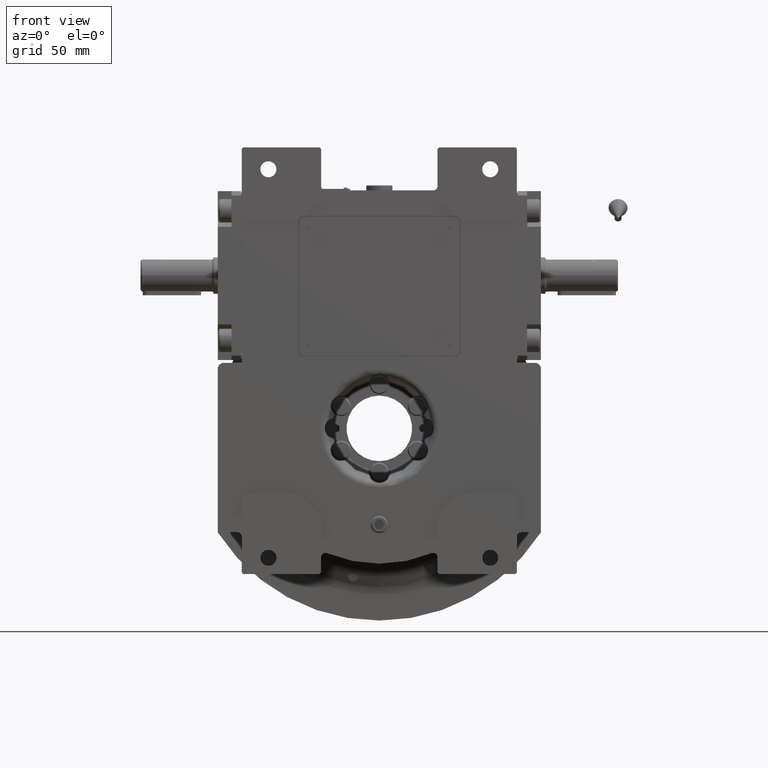
[diagram: clean part render]
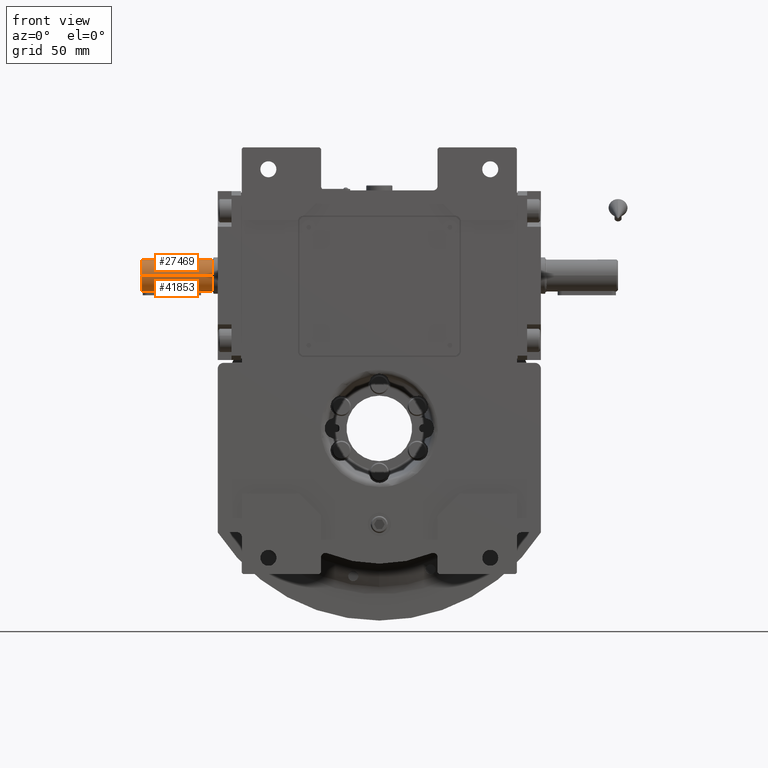
[diagram: same view with one multi-face feature highlighted, each face labeled with its STEP entity id]
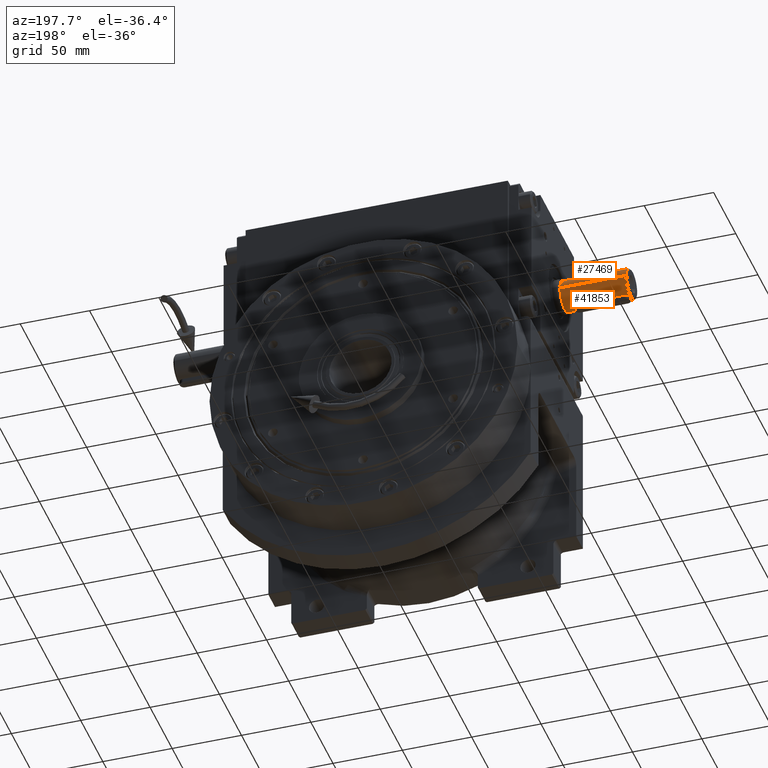
[diagram: same view with one multi-face feature highlighted, each face labeled with its STEP entity id]
A machine part, front view. The highlighted faces form ONE feature: a constant-radius fillet chain: 2 tangent blend faces with common blend radius 11 mm. The faces share edges in the B-rep.
A second angle (auxiliary view) of the same feature is appended — it is thin or edge-on in the first view.
Their STEP definitions:
[1] entity #41853 (Cylinder):
#3 = CARTESIAN_POINT ( 'NONE',  ( 2.768513025352925983, 170.3444174603243084, 10.64570308239752272 ) ) ;
#307 = CARTESIAN_POINT ( 'NONE',  ( -2.698907439505213279, 206.8105446094842534, 10.66393854603710345 ) ) ;
#351 = CARTESIAN_POINT ( 'NONE',  ( -5.539718940497369459, 208.9998216057735476, 9.611494387161672037 ) ) ;
#1695 = CARTESIAN_POINT ( 'NONE',  ( 2.999999999999926281, 171.5000000000000284, 10.58300524425835576 ) ) ;
#1847 = CARTESIAN_POINT ( 'NONE',  ( -2.979326648543515699, 171.0971223052072503, 10.59077587316052238 ) ) ;
#2564 = VECTOR ( 'NONE', #22609, 1000.000000000000000 ) ;
#2754 = CARTESIAN_POINT ( 'NONE',  ( -1.109627185540406735, 208.2872959487409048, 10.94387157015933276 ) ) ;
#2868 = CARTESIAN_POINT ( 'NONE',  ( -1.167542316113182599, 168.7365123355784817, 10.93782163668169360 ) ) ;
#3089 = CARTESIAN_POINT ( 'NONE',  ( -0.3790211413637414317, 208.4824720792036317, 10.99496479331891052 ) ) ;
#3196 = CARTESIAN_POINT ( 'NONE',  ( -1.761503377498397249, 169.0637309891567384, 10.85852761823457158 ) ) ;
#3528 = CARTESIAN_POINT ( 'NONE',  ( 2.009136468733579761, 169.2719375028273703, 10.81489993367487301 ) ) ;
#3763 = CARTESIAN_POINT ( 'NONE',  ( 2.653232687552503410, 206.9137802569441931, 10.67643290049545612 ) ) ;
#4103 = CARTESIAN_POINT ( 'NONE',  ( 2.999999999999926281, 205.5000000000000284, 10.58300524425835576 ) ) ;
#4206 = CARTESIAN_POINT ( 'NONE',  ( 1.765016624717449245, 169.0715607216540377, 10.85718209647383681 ) ) ;
#4426 = CARTESIAN_POINT ( 'NONE',  ( -2.916726216699192076, 206.2985075118487828, 10.60716823416496801 ) ) ;
#5877 = AXIS2_PLACEMENT_3D ( 'NONE', #64886, #32458, #11855 ) ;
#6143 = LINE ( 'NONE', #1695, #2564 ) ;
#6328 = DIRECTION ( 'NONE',  ( -1.000000000000000000, 0.000000000000000000, 7.549516567451066053E-15 ) ) ;
#6617 = CARTESIAN_POINT ( 'NONE',  ( -2.722192573628704704, 170.2328222567296621, 10.65774367792656818 ) ) ;
#6669 = CARTESIAN_POINT ( 'NONE',  ( -3.000000000000073719, 205.5000000000000284, 10.58300524425835576 ) ) ;
#7320 = CARTESIAN_POINT ( 'NONE',  ( -2.438082279217011372, 169.7481291815186353, 10.72743677364182346 ) ) ;
#7368 = AXIS2_PLACEMENT_3D ( 'NONE', #26949, #17296, #6328 ) ;
#7856 = CARTESIAN_POINT ( 'NONE',  ( -3.000000000000073719, 171.5000000000000284, 10.58300524425882827 ) ) ;
#7972 = CARTESIAN_POINT ( 'NONE',  ( -2.232376894938086220, 169.4956412869229325, 10.77130172608870140 ) ) ;
#8008 = LINE ( 'NONE', #61367, #14060 ) ;
#8211 = CARTESIAN_POINT ( 'NONE',  ( 2.999999999999920952, 205.7030581364574857, 10.58473536746739718 ) ) ;
#8328 = CARTESIAN_POINT ( 'NONE',  ( 1.067681326174936718, 168.6962141872421057, 10.94807461813112859 ) ) ;
#8546 = CARTESIAN_POINT ( 'NONE',  ( 2.779840276394454524, 206.6280618357306196, 10.64275983503435086 ) ) ;
#8651 = CARTESIAN_POINT ( 'NONE',  ( 1.678559112312656865, 169.0116241200572915, 10.87070389965108319 ) ) ;
#8872 = CARTESIAN_POINT ( 'NONE',  ( 1.286031883976461732, 208.2106413463210686, 10.92437284050215318 ) ) ;
#8982 = CARTESIAN_POINT ( 'NONE',  ( 2.999999999999926281, 171.5000000000000284, 10.58300524425835576 ) ) ;
#9085 = ORIENTED_EDGE ( 'NONE', *, *, #14012, .T. ) ;
#9218 = CARTESIAN_POINT ( 'NONE',  ( -1.765016607846088048, 207.9284392897766907, 10.85718209991657268 ) ) ;
#9333 = CARTESIAN_POINT ( 'NONE',  ( 1.897425705253070083, 169.1755805140681161, 10.83486051008335416 ) ) ;
#9553 = CARTESIAN_POINT ( 'NONE',  ( -2.715325038922841827, 206.7760518172297566, 10.65964338194845240 ) ) ;
#10602 = CARTESIAN_POINT ( 'NONE',  ( -2.167336588683644205, 169.4254685392180306, 10.78446056407007347 ) ) ;
#11266 = CARTESIAN_POINT ( 'NONE',  ( -9.611494388950392320, 208.9998216057721550, 5.539718937396585829 ) ) ;
#11467 = CYLINDRICAL_SURFACE ( 'NONE', #7368, 11.00000000000000000 ) ;
#11628 = B_SPLINE_CURVE_WITH_KNOTS ( 'NONE', 3,
 ( #4103, #8211, #34248, #14031, #13695, #24330, #45840, #12994, #24003, #8546, #18494, #60547, #49621, #3763, #55746, #50290, #45513, #40038, #39363, #18827, #60211, #13331, #55072, #34602, #39686, #18167, #54734, #8872, #39036, #44502, #65673, #29823, #50623, #29165, #66356, #40371, #55420, #3089, #14358, #59874, #29485, #49967, #45162, #2754, #23678, #65343, #66007, #60890, #35260, #56089, #9218, #20205, #46172, #14706, #36270, #41059, #51294, #35612, #57089, #21204, #30492, #307, #9553, #36616, #35941, #57436, #46525, #20541, #67024, #4426, #56436, #47178 ),
 .UNSPECIFIED., .F., .F.,
 ( 4, 2, 2, 1, 1, 1, 2, 2, 2, 2, 2, 2, 2, 2, 2, 2, 1, 1, 2, 2, 2, 2, 2, 1, 1, 1, 2, 2, 2, 2, 2, 2, 2, 2, 2, 2, 1, 1, 2, 2, 4 ),
 ( 0.000000000000000000, 0.06249999999979319321, 0.09374999999968548769, 0.1093749999996316419, 0.1171874999996089517, 0.1210937499995975442, 0.1230468749995918820, 0.1249999999995862060, 0.1874999999995273503, 0.2187499999995015654, 0.2343749999994916011, 0.2421874999994891586, 0.2499999999994867439, 0.3124999999994863553, 0.3437499999994862443, 0.3593749999994861333, 0.3671874999994884647, 0.3710937499994895195, 0.3730468749994876321, 0.3749999999994858002, 0.4999999999993999245, 0.5624999999993569588, 0.5937499999993364197, 0.6093749999993260946, 0.6171874999993223199, 0.6210937499993219868, 0.6230468749993218758, 0.6249999999993216537, 0.6874999999994270139, 0.7187499999994796385, 0.7343749999995060618, 0.7421874999995192734, 0.7499999999995324851, 0.8124999999996329603, 0.8437499999996794786, 0.8593749999997026823, 0.8671874999997142286, 0.8710937499997200018, 0.8730468749997227773, 0.8749999999997254418, 1.000000000000000000 ),
 .UNSPECIFIED. ) ;
#11757 = CARTESIAN_POINT ( 'NONE',  ( -3.000000000000073719, 171.5000000000000284, 10.58300524425882827 ) ) ;
#11855 = DIRECTION ( 'NONE',  ( -1.000000000000000000, 0.000000000000000000, 7.711003552851090256E-15 ) ) ;
#12313 = CARTESIAN_POINT ( 'NONE',  ( -11.00000000000000000, 161.0000000000000284, -4.628547545237893246E-09 ) ) ;
#12994 = CARTESIAN_POINT ( 'NONE',  ( 2.801868858470870194, 206.5726274570406247, 10.63704590494140412 ) ) ;
#13104 = CARTESIAN_POINT ( 'NONE',  ( -2.498350456136470221, 169.8363144599198051, 10.71355034653169014 ) ) ;
#13331 = CARTESIAN_POINT ( 'NONE',  ( 2.143602779759605337, 207.5990400649874061, 10.78918130667785213 ) ) ;
#13448 = CARTESIAN_POINT ( 'NONE',  ( 2.644564864764742840, 170.0812713992473277, 10.67795870609824327 ) ) ;
#13660 = EDGE_CURVE ( 'NONE', #39619, #40430, #39033, .T. ) ;
#13695 = CARTESIAN_POINT ( 'NONE',  ( 2.896620549922614529, 206.2867366109769875, 10.61255509526254848 ) ) ;
#13808 = CARTESIAN_POINT ( 'NONE',  ( 2.031554838444890265, 169.2923470949750140, 10.81075490227133251 ) ) ;
#14012 = EDGE_CURVE ( 'NONE', #53607, #32278, #47525, .T. ) ;
#14031 = CARTESIAN_POINT ( 'NONE',  ( 2.920736592802828380, 206.1920781631040427, 10.60630209123707246 ) ) ;
#14060 = VECTOR ( 'NONE', #24836, 1000.000000000000000 ) ;
#14134 = CARTESIAN_POINT ( 'NONE',  ( 2.767734022707143193, 170.3425611766373891, 10.64590627712759385 ) ) ;
#14358 = CARTESIAN_POINT ( 'NONE',  ( -0.6690471670458788545, 208.4261023684203451, 10.97984746646838872 ) ) ;
#14469 = CARTESIAN_POINT ( 'NONE',  ( 1.279005678273045454, 168.7827925354090155, 10.92607962578965264 ) ) ;
#14706 = CARTESIAN_POINT ( 'NONE',  ( -2.009136411221243090, 207.7280625489485146, 10.81489994510766550 ) ) ;
#15036 = VERTEX_POINT ( 'NONE', #12313 ) ;
#15083 = CARTESIAN_POINT ( 'NONE',  ( 5.539718934293243358, 208.9998216057761340, 9.611494390734476312 ) ) ;
#15758 = CARTESIAN_POINT ( 'NONE',  ( -1.439873283641012858, 208.9998216057745140, 10.99982159951607841 ) ) ;
#16109 = CARTESIAN_POINT ( 'NONE',  ( 2.879180028076219422, 208.9998216057754803, 10.71352568765430746 ) ) ;
#16493 = ORIENTED_EDGE ( 'NONE', *, *, #37286, .F. ) ;
#17296 = DIRECTION ( 'NONE',  ( 4.190823558986625216E-31, -1.000000000000000000, -8.381647117973250432E-31 ) ) ;
#17718 = B_SPLINE_CURVE_WITH_KNOTS ( 'NONE', 3,
 ( #11757, #23094, #1847, #22759, #32671, #17926, #37811, #27553, #43594, #59986, #38463, #38810, #6617, #59661, #13104, #7320, #28248, #34026, #7972, #28919, #10602, #31514, #44611, #3196, #25125, #50070, #24443, #61333, #24801, #40145, #66461, #2868, #29273, #50401, #19620, #40475, #18938, #35373, #56206, #45274, #55525, #23787, #8328, #44939, #34365, #45619, #24113, #14469, #39800, #8651, #4206, #9333, #60671, #3528, #13808, #65778, #39467, #29933, #34708, #29596, #13448, #66133, #19295, #46871, #60993, #30278, #60319, #14134, #3, #35033, #55856, #8982 ),
 .UNSPECIFIED., .F., .F.,
 ( 4, 2, 2, 1, 1, 1, 2, 2, 2, 2, 2, 2, 2, 2, 2, 2, 1, 1, 2, 2, 2, 2, 2, 1, 1, 1, 2, 2, 2, 2, 2, 2, 2, 2, 2, 2, 1, 1, 2, 2, 4 ),
 ( 0.000000000000000000, 0.06249999999987385091, 0.09374999999981076249, 0.1093749999997834788, 0.1171874999997698091, 0.1210937499997629813, 0.1230468749997596228, 0.1249999999997562505, 0.1874999999998356592, 0.2187499999998752942, 0.2343749999998922529, 0.2421874999998981370, 0.2499999999999040212, 0.3124999999999651945, 0.3437499999999957812, 0.3593750000000087153, 0.3671875000000128231, 0.3710937500000148770, 0.3730468750000183187, 0.3750000000000217604, 0.5000000000001676437, 0.5625000000002406964, 0.5937500000002772227, 0.6093750000002954303, 0.6171875000003045342, 0.6210937500003090861, 0.6230468750003097522, 0.6250000000003104184, 0.6875000000003234080, 0.7187500000003322898, 0.7343750000003390621, 0.7421875000003448353, 0.7500000000003506084, 0.8125000000004060086, 0.8437500000004299894, 0.8593750000004372058, 0.8671875000004463097, 0.8710937500004508616, 0.8730468750004469758, 0.8750000000004430900, 1.000000000000000000 ),
 .UNSPECIFIED. ) ;
#17926 = CARTESIAN_POINT ( 'NONE',  ( -2.854075951817782286, 170.5744775876573556, 10.62355100343989101 ) ) ;
#17973 = FACE_OUTER_BOUND ( 'NONE', #45938, .T. ) ;
#18167 = CARTESIAN_POINT ( 'NONE',  ( 1.433641063859913301, 208.1365963449600542, 10.90581971387782190 ) ) ;
#18494 = CARTESIAN_POINT ( 'NONE',  ( 2.775339633358492986, 206.6390897185938229, 10.64392871889903880 ) ) ;
#18827 = CARTESIAN_POINT ( 'NONE',  ( 2.211193640733474020, 207.5277207285452619, 10.77562492030889985 ) ) ;
#18938 = CARTESIAN_POINT ( 'NONE',  ( 0.1869661390004682955, 168.4999999914901139, 11.00000259683182691 ) ) ;
#19006 = ORIENTED_EDGE ( 'NONE', *, *, #33227, .F. ) ;
#19295 = CARTESIAN_POINT ( 'NONE',  ( 2.715325017861220935, 170.2239481373033527, 10.65964339383729786 ) ) ;
#19620 = CARTESIAN_POINT ( 'NONE',  ( -0.7694194016925647306, 168.5709750817599684, 10.97983836647868294 ) ) ;
#19899 = ORIENTED_EDGE ( 'NONE', *, *, #13660, .T. ) ;
#20205 = CARTESIAN_POINT ( 'NONE',  ( -1.897425668484651551, 207.8244195157290619, 10.83486051743896361 ) ) ;
#20541 = CARTESIAN_POINT ( 'NONE',  ( -2.767734004599104125, 206.6574388666507502, 10.64590627739815432 ) ) ;
#21204 = CARTESIAN_POINT ( 'NONE',  ( -2.601559668085960286, 206.9971612710416196, 10.68881831214253708 ) ) ;
#22609 = DIRECTION ( 'NONE',  ( -4.190823558986625216E-31, 1.000000000000000000, 8.381647117973250432E-31 ) ) ;
#22759 = CARTESIAN_POINT ( 'NONE',  ( -2.920736532385515005, 170.8079215815316161, 10.60630211995170846 ) ) ;
#23094 = CARTESIAN_POINT ( 'NONE',  ( -3.000000000000080380, 171.2969416959749935, 10.58473538646192047 ) ) ;
#23678 = CARTESIAN_POINT ( 'NONE',  ( -1.127575243858438991, 208.2800388084310441, 10.94202596088717527 ) ) ;
#23787 = CARTESIAN_POINT ( 'NONE',  ( 0.9835474860896797900, 168.6650015443500479, 10.95606725368446455 ) ) ;
#24003 = CARTESIAN_POINT ( 'NONE',  ( 2.786545493596085610, 206.6114913094266967, 10.64101913722736192 ) ) ;
#24113 = CARTESIAN_POINT ( 'NONE',  ( 1.147497296970661607, 168.7281290473081299, 10.93995103367353039 ) ) ;
#24330 = CARTESIAN_POINT ( 'NONE',  ( 2.854076010124392937, 206.4255222335273459, 10.62355098402704634 ) ) ;
#24443 = CARTESIAN_POINT ( 'NONE',  ( -1.322026423828879471, 168.8066771672218067, 10.91998920481134405 ) ) ;
#24801 = CARTESIAN_POINT ( 'NONE',  ( -1.234039142372917341, 168.7654962015103592, 10.93043900252522072 ) ) ;
#24836 = DIRECTION ( 'NONE',  ( -4.190823558986625216E-31, 1.000000000000000000, 8.381647117973250432E-31 ) ) ;
#25125 = CARTESIAN_POINT ( 'NONE',  ( -1.512920505492289402, 168.9075789781375363, 10.89501527342681975 ) ) ;
#25395 = CARTESIAN_POINT ( 'NONE',  ( -8.796192606682934567, 208.9998216057725244, 6.759904283368526556 ) ) ;
#26949 = CARTESIAN_POINT ( 'NONE',  ( -1.806714880829665954E-27, 160.0000000000000284, 4.718447854656915297E-13 ) ) ;
#27087 = CARTESIAN_POINT ( 'NONE',  ( 8.796192602316750708, 208.9998216057771572, 6.759904289042378167 ) ) ;
#27553 = CARTESIAN_POINT ( 'NONE',  ( -2.801868823610907278, 170.4273724525710065, 10.63704591330718685 ) ) ;
#27713 = ORIENTED_EDGE ( 'NONE', *, *, #31476, .F. ) ;
#27826 = CARTESIAN_POINT ( 'NONE',  ( -10.99995538991750088, 208.9999554115215119, -1.645558550533721132E-07 ) ) ;
#28248 = CARTESIAN_POINT ( 'NONE',  ( -2.331831480777063703, 169.6116446080049229, 10.75053732546463259 ) ) ;
#28460 = DIRECTION ( 'NONE',  ( -4.190823558986625216E-31, 1.000000000000000000, 8.381647117973250432E-31 ) ) ;
#28919 = CARTESIAN_POINT ( 'NONE',  ( -2.211193619821321565, 169.4722792484953686, 10.77562492455033727 ) ) ;
#29165 = CARTESIAN_POINT ( 'NONE',  ( 1.157452513228705016, 208.2677329124778964, 10.93890087851657711 ) ) ;
#29273 = CARTESIAN_POINT ( 'NONE',  ( -1.159479155630789737, 168.7331195871554428, 10.93868412015501868 ) ) ;
#29485 = CARTESIAN_POINT ( 'NONE',  ( -0.9111084508035232066, 208.3587463839891711, 10.96220928438663655 ) ) ;
#29596 = CARTESIAN_POINT ( 'NONE',  ( 2.601559605864343538, 170.0028386211674274, 10.68881833244912549 ) ) ;
#29823 = CARTESIAN_POINT ( 'NONE',  ( 1.167542354304431651, 208.2634876482844959, 10.93782163464049439 ) ) ;
#29933 = CARTESIAN_POINT ( 'NONE',  ( 2.308734591574675310, 169.5660757615260650, 10.75673222596681278 ) ) ;
#30278 = CARTESIAN_POINT ( 'NONE',  ( 2.759870980702121113, 170.3238923559703721, 10.64795842688990746 ) ) ;
#30492 = CARTESIAN_POINT ( 'NONE',  ( -2.644564917222758105, 206.9187285013183555, 10.67795868685712435 ) ) ;
#31464 = ORIENTED_EDGE ( 'NONE', *, *, #37332, .F. ) ;
#31476 = EDGE_CURVE ( 'NONE', #15036, #36917, #8008, .T. ) ;
#31514 = CARTESIAN_POINT ( 'NONE',  ( -2.143602725503916062, 169.4009598796852458, 10.78918131756622500 ) ) ;
#31529 = CARTESIAN_POINT ( 'NONE',  ( -6.759904286206499968, 208.9998216057732066, 8.796192604501118950 ) ) ;
#31818 = CARTESIAN_POINT ( 'NONE',  ( 11.00000000000000000, 161.0000000000000284, 0.000000000000000000 ) ) ;
#32278 = VERTEX_POINT ( 'NONE', #42960 ) ;
#32389 = FACE_BOUND ( 'NONE', #63577, .T. ) ;
#32458 = DIRECTION ( 'NONE',  ( -4.190823558986625216E-31, 1.000000000000000000, 8.381647117973250432E-31 ) ) ;
#32671 = CARTESIAN_POINT ( 'NONE',  ( -2.896620484574007559, 170.7132631530699030, 10.61255512167265103 ) ) ;
#32873 = CARTESIAN_POINT ( 'NONE',  ( -3.000000000000073719, 171.5000000000000284, 10.58300524425882827 ) ) ;
#33227 = EDGE_CURVE ( 'NONE', #50783, #40430, #11628, .T. ) ;
#34026 = CARTESIAN_POINT ( 'NONE',  ( -2.293773039446043605, 169.5654594730333997, 10.75861599459850027 ) ) ;
#34248 = CARTESIAN_POINT ( 'NONE',  ( 2.979326682313694352, 205.9028774423900074, 10.59077584461320853 ) ) ;
#34365 = CARTESIAN_POINT ( 'NONE',  ( 1.127575323570569443, 168.7199612239032547, 10.94202595588551397 ) ) ;
#34602 = CARTESIAN_POINT ( 'NONE',  ( 1.761503382575570598, 207.9362690075281250, 10.85852761685147527 ) ) ;
#34708 = CARTESIAN_POINT ( 'NONE',  ( 2.446669717013518319, 169.7529380078596262, 10.72593579875619696 ) ) ;
#35033 = CARTESIAN_POINT ( 'NONE',  ( 2.916726425407026202, 170.7014930090882672, 10.60716817197001127 ) ) ;
#35260 = CARTESIAN_POINT ( 'NONE',  ( -1.429970973129989442, 208.1445195910418136, 10.90719154465723761 ) ) ;
#35261 = EDGE_CURVE ( 'NONE', #39619, #63071, #17718, .T. ) ;
#35373 = CARTESIAN_POINT ( 'NONE',  ( 0.3790212450437298597, 168.5175279328498164, 10.99496478591223259 ) ) ;
#35612 = CARTESIAN_POINT ( 'NONE',  ( -2.308734620827886275, 207.4339242235998597, 10.75673222121823080 ) ) ;
#35941 = CARTESIAN_POINT ( 'NONE',  ( -2.748365588727722741, 206.7029063017605779, 10.65097208023377284 ) ) ;
#35982 = CARTESIAN_POINT ( 'NONE',  ( 6.759904280527829101, 208.9998216057764466, 8.796192608861028717 ) ) ;
#36270 = CARTESIAN_POINT ( 'NONE',  ( -2.031554776398934337, 207.7076529620197221, 10.81075491461140992 ) ) ;
#36616 = CARTESIAN_POINT ( 'NONE',  ( -2.737723622719320904, 206.7268634571211408, 10.65376796009249638 ) ) ;
#36917 = VERTEX_POINT ( 'NONE', #27826 ) ;
#37286 = EDGE_CURVE ( 'NONE', #36917, #32278, #62407, .T. ) ;
#37332 = EDGE_CURVE ( 'NONE', #63071, #50783, #6143, .T. ) ;
#37811 = CARTESIAN_POINT ( 'NONE',  ( -2.831211770130450223, 170.5058840566492506, 10.62945303911996753 ) ) ;
#38463 = CARTESIAN_POINT ( 'NONE',  ( -2.775339617218290922, 170.3609102421057173, 10.64392872073281993 ) ) ;
#38810 = CARTESIAN_POINT ( 'NONE',  ( -2.772312094891824508, 170.3535701749893008, 10.64471543622038219 ) ) ;
#39033 = LINE ( 'NONE', #7856, #55253 ) ;
#39036 = CARTESIAN_POINT ( 'NONE',  ( 1.234039166872521687, 208.2345037874122511, 10.93043900165574023 ) ) ;
#39298 = ORIENTED_EDGE ( 'NONE', *, *, #35261, .F. ) ;
#39363 = CARTESIAN_POINT ( 'NONE',  ( 2.232376909501758266, 207.5043586967249496, 10.77130172318535983 ) ) ;
#39467 = CARTESIAN_POINT ( 'NONE',  ( 2.097778072076528222, 169.3551396584122983, 10.79818608746039565 ) ) ;
#39568 = CARTESIAN_POINT ( 'NONE',  ( 10.99982159904755719, 208.9998216057784646, 1.439873287189853635 ) ) ;
#39619 = VERTEX_POINT ( 'NONE', #32873 ) ;
#39686 = CARTESIAN_POINT ( 'NONE',  ( 1.512920505027652407, 208.0924210222171951, 10.89501527399900027 ) ) ;
#39800 = CARTESIAN_POINT ( 'NONE',  ( 1.429970974490046398, 168.8554804092703421, 10.90719154593360152 ) ) ;
#40038 = CARTESIAN_POINT ( 'NONE',  ( 2.293773036830393686, 207.4345405295221951, 10.75861599544649572 ) ) ;
#40145 = CARTESIAN_POINT ( 'NONE',  ( -1.208542002004602267, 168.7540940151675102, 10.93334476044181791 ) ) ;
#40371 = CARTESIAN_POINT ( 'NONE',  ( 0.3739325104841490499, 208.4999999856364070, 10.99999479697607541 ) ) ;
#40430 = VERTEX_POINT ( 'NONE', #6669 ) ;
#40475 = CARTESIAN_POINT ( 'NONE',  ( -0.3739326876441928516, 168.5000000170199428, 10.99999480633900717 ) ) ;
#41059 = CARTESIAN_POINT ( 'NONE',  ( -2.076399965673086712, 207.6655275553030151, 10.80229494691891112 ) ) ;
#41184 = CARTESIAN_POINT ( 'NONE',  ( 2.999999999999926281, 171.5000000000000284, 10.58300524425835576 ) ) ;
#41853 = ADVANCED_FACE ( 'NONE', ( #17973, #32389 ), #11467, .T. ) ;
#42431 = CARTESIAN_POINT ( 'NONE',  ( -10.71352568672911154, 208.9998216057715865, 2.879180031534207984 ) ) ;
#42960 = CARTESIAN_POINT ( 'NONE',  ( 11.00000000000000000, 208.9999777057610117, 0.000000000000000000 ) ) ;
#43594 = CARTESIAN_POINT ( 'NONE',  ( -2.786545469109216633, 170.3885086293562949, 10.64101914187423681 ) ) ;
#44502 = CARTESIAN_POINT ( 'NONE',  ( 1.208542031159796082, 208.2459059719581091, 10.93334475918530480 ) ) ;
#44611 = CARTESIAN_POINT ( 'NONE',  ( -1.942138540634602784, 169.1995151677060107, 10.82877006683071386 ) ) ;
#44939 = CARTESIAN_POINT ( 'NONE',  ( 1.109627269032139152, 168.7127040845179238, 10.94387156488032531 ) ) ;
#45162 = CARTESIAN_POINT ( 'NONE',  ( -1.067681234393989431, 208.3037858477821942, 10.94807462401718645 ) ) ;
#45274 = CARTESIAN_POINT ( 'NONE',  ( 0.7660300046609707092, 168.5976912605676716, 10.97354824663432815 ) ) ;
#45513 = CARTESIAN_POINT ( 'NONE',  ( 2.331831469196719020, 207.3883554059316339, 10.75053732846294174 ) ) ;
#45619 = CARTESIAN_POINT ( 'NONE',  ( 1.139533978096353595, 168.7248416225932601, 10.94078570534258787 ) ) ;
#45840 = CARTESIAN_POINT ( 'NONE',  ( 2.831211821317812127, 206.4941158000846713, 10.62945302409086779 ) ) ;
#45938 = EDGE_LOOP ( 'NONE', ( #50993, #9085, #16493, #27713 ) ) ;
#46172 = CARTESIAN_POINT ( 'NONE',  ( -1.942007582189039017, 207.7873945690254232, 10.82708017654643484 ) ) ;
#46525 = CARTESIAN_POINT ( 'NONE',  ( -2.764613468312776767, 206.6648727917981319, 10.64672004479335143 ) ) ;
#46871 = CARTESIAN_POINT ( 'NONE',  ( 2.737723616411819716, 170.2731365286352059, 10.65376796770135215 ) ) ;
#47178 = CARTESIAN_POINT ( 'NONE',  ( -3.000000000000073719, 205.5000000000000284, 10.58300524425835576 ) ) ;
#47525 = LINE ( 'NONE', #31818, #62917 ) ;
#47570 = CARTESIAN_POINT ( 'NONE',  ( -10.99995538991750088, 208.9999554115215119, -1.645558550533721132E-07 ) ) ;
#49621 = CARTESIAN_POINT ( 'NONE',  ( 2.722192558527224637, 206.7671777832652253, 10.65774368688581752 ) ) ;
#49967 = CARTESIAN_POINT ( 'NONE',  ( -0.9835473798974589954, 208.3349984927263279, 10.95606726062416847 ) ) ;
#50070 = CARTESIAN_POINT ( 'NONE',  ( -1.433641062218309337, 168.8634036539154408, 10.90581971317198651 ) ) ;
#50290 = CARTESIAN_POINT ( 'NONE',  ( 2.438082247072540287, 207.2518708616502465, 10.72743678203931772 ) ) ;
#50401 = CARTESIAN_POINT ( 'NONE',  ( -1.157452472523895493, 168.7322670704961354, 10.93890088078124201 ) ) ;
#50623 = CARTESIAN_POINT ( 'NONE',  ( 1.159479195744522739, 208.2668803960329171, 10.93868411794433371 ) ) ;
#50783 = VERTEX_POINT ( 'NONE', #58938 ) ;
#50993 = ORIENTED_EDGE ( 'NONE', *, *, #64128, .T. ) ;
#51294 = CARTESIAN_POINT ( 'NONE',  ( -2.097777976926294752, 207.6448604349320135, 10.79818610642119481 ) ) ;
#52327 = CARTESIAN_POINT ( 'NONE',  ( 1.439873276542152247, 208.9998216057751108, 10.99982160044466362 ) ) ;
#53607 = VERTEX_POINT ( 'NONE', #53742 ) ;
#53742 = CARTESIAN_POINT ( 'NONE',  ( 11.00000000000000000, 161.0000000000000284, 4.629005512235551123E-09 ) ) ;
#54017 = CARTESIAN_POINT ( 'NONE',  ( 10.71352568486465096, 208.9998216057781235, 2.879180038446522261 ) ) ;
#54734 = CARTESIAN_POINT ( 'NONE',  ( 1.322026435441519654, 208.1933228270213192, 10.91998920494051184 ) ) ;
#55072 = CARTESIAN_POINT ( 'NONE',  ( 1.942138565853941845, 207.8004848156914761, 10.82877006207170112 ) ) ;
#55253 = VECTOR ( 'NONE', #28460, 1000.000000000000000 ) ;
#55302 = CARTESIAN_POINT ( 'NONE',  ( 9.611494385370731308, 208.9998216057774698, 5.539718943596763978 ) ) ;
#55420 = CARTESIAN_POINT ( 'NONE',  ( -0.1869660823866986232, 208.5000000071818249, 11.00000260151293929 ) ) ;
#55525 = CARTESIAN_POINT ( 'NONE',  ( 0.9111085654770401110, 168.6412536526179053, 10.96220927681882351 ) ) ;
#55746 = CARTESIAN_POINT ( 'NONE',  ( 2.498350418695179265, 207.1636855961121739, 10.71355035712630688 ) ) ;
#55856 = CARTESIAN_POINT ( 'NONE',  ( 2.999999999999919176, 171.0937962497110334, 10.58646650751571272 ) ) ;
#56089 = CARTESIAN_POINT ( 'NONE',  ( -1.678559104051018824, 207.9883758854034284, 10.87070390130170239 ) ) ;
#56206 = CARTESIAN_POINT ( 'NONE',  ( 0.6690472934797423443, 168.5738976602024479, 10.97984745790703087 ) ) ;
#56436 = CARTESIAN_POINT ( 'NONE',  ( -3.000000000000078604, 205.9062042931898304, 10.58646656928889129 ) ) ;
#57089 = CARTESIAN_POINT ( 'NONE',  ( -2.446669781241361807, 207.2470619033198318, 10.72593578221498234 ) ) ;
#57436 = CARTESIAN_POINT ( 'NONE',  ( -2.759870969661187168, 206.6761076698489319, 10.64795842476979715 ) ) ;
#58938 = CARTESIAN_POINT ( 'NONE',  ( 2.999999999999926281, 205.5000000000000284, 10.58300524425835576 ) ) ;
#59661 = CARTESIAN_POINT ( 'NONE',  ( -2.653232724297382106, 170.0862198111042574, 10.67643288751645692 ) ) ;
#59874 = CARTESIAN_POINT ( 'NONE',  ( -0.7660298785186825388, 208.4023087729604526, 10.97354825509163589 ) ) ;
#59986 = CARTESIAN_POINT ( 'NONE',  ( -2.779840256848175262, 170.3719381161269268, 10.64275983800443548 ) ) ;
#60211 = CARTESIAN_POINT ( 'NONE',  ( 2.167336623629462888, 207.5745314241212895, 10.78446055697714989 ) ) ;
#60319 = CARTESIAN_POINT ( 'NONE',  ( 2.764613483579594355, 170.3351272444222104, 10.64672004548993733 ) ) ;
#60547 = CARTESIAN_POINT ( 'NONE',  ( 2.772312108320804658, 206.6464297925444100, 10.64471543524964936 ) ) ;
#60671 = CARTESIAN_POINT ( 'NONE',  ( 1.942007626740608561, 169.2126054684655969, 10.82708016768242310 ) ) ;
#60890 = CARTESIAN_POINT ( 'NONE',  ( -1.279005655815794507, 208.2172074779477953, 10.92607962582780168 ) ) ;
#60993 = CARTESIAN_POINT ( 'NONE',  ( 2.748365590168971639, 170.2970937011939725, 10.65097208548508156 ) ) ;
#61333 = CARTESIAN_POINT ( 'NONE',  ( -1.286031867911195947, 168.7893586459718449, 10.92437284069473513 ) ) ;
#61367 = CARTESIAN_POINT ( 'NONE',  ( -11.00000000000000000, 161.0000000000000284, 4.718447854656915297E-13 ) ) ;
#61952 = CARTESIAN_POINT ( 'NONE',  ( -2.879180034990576953, 208.9998216057742297, 10.71352568579750297 ) ) ;
#62407 = B_SPLINE_CURVE_WITH_KNOTS ( 'NONE', 3,
 ( #47570, #62601, #42431, #11266, #25395, #31529, #351, #61952, #15758, #52327, #16109, #15083, #35982, #27087, #55302, #54017, #39568, #65557 ),
 .UNSPECIFIED., .F., .F.,
 ( 4, 2, 2, 2, 2, 2, 2, 2, 4 ),
 ( 0.000000000000000000, 0.1250000000000000000, 0.2500000000000000000, 0.3750000000000000000, 0.5000000000000000000, 0.6250000000000000000, 0.7500000000000000000, 0.8750000000000000000, 1.000000000000000000 ),
 .UNSPECIFIED. ) ;
#62556 = DIRECTION ( 'NONE',  ( -4.190823558986625216E-31, 1.000000000000000000, 8.381647117973250432E-31 ) ) ;
#62601 = CARTESIAN_POINT ( 'NONE',  ( -10.99982159998399567, 208.9998216057711602, 1.439873280092003771 ) ) ;
#62917 = VECTOR ( 'NONE', #62556, 1000.000000000000000 ) ;
#63071 = VERTEX_POINT ( 'NONE', #41184 ) ;
#63577 = EDGE_LOOP ( 'NONE', ( #19899, #19006, #31464, #39298 ) ) ;
#64128 = EDGE_CURVE ( 'NONE', #15036, #53607, #65030, .T. ) ;
#64886 = CARTESIAN_POINT ( 'NONE',  ( -8.881784197018295663E-16, 161.0000000000000284, 4.579669976578770729E-13 ) ) ;
#65030 = CIRCLE ( 'NONE', #5877, 11.00000000000000000 ) ;
#65343 = CARTESIAN_POINT ( 'NONE',  ( -1.139533900953834111, 208.2751584090861456, 10.94078571015552725 ) ) ;
#65557 = CARTESIAN_POINT ( 'NONE',  ( 11.00000000000000000, 208.9999777057610117, 0.000000000000000000 ) ) ;
#65673 = CARTESIAN_POINT ( 'NONE',  ( 1.179703648391469128, 208.2583393865936614, 10.93651199430383691 ) ) ;
#65778 = CARTESIAN_POINT ( 'NONE',  ( 2.076400037127481557, 169.3344725131065616, 10.80229493266220686 ) ) ;
#66007 = CARTESIAN_POINT ( 'NONE',  ( -1.147497220845979271, 208.2718709842086469, 10.93995103843515260 ) ) ;
#66133 = CARTESIAN_POINT ( 'NONE',  ( 2.698907409592853579, 170.1894553284683695, 10.66393856019913677 ) ) ;
#66356 = CARTESIAN_POINT ( 'NONE',  ( 0.7694195325722928969, 208.4290248706462023, 10.97983835631162108 ) ) ;
#66461 = CARTESIAN_POINT ( 'NONE',  ( -1.179703613028072251, 168.7416605982708973, 10.93651199609687730 ) ) ;
#67024 = CARTESIAN_POINT ( 'NONE',  ( -2.768513007301309781, 206.6555825828829143, 10.64570308271039600 ) ) ;
[2] entity #27469 (Cylinder):
#652 = CARTESIAN_POINT ( 'NONE',  ( 8.348436726547641190E-14, 208.9999108029441004, -10.99991079990971343 ) ) ;
#2746 = ORIENTED_EDGE ( 'NONE', *, *, #14012, .F. ) ;
#2908 = EDGE_CURVE ( 'NONE', #53607, #15036, #28703, .T. ) ;
#3608 = ORIENTED_EDGE ( 'NONE', *, *, #37258, .F. ) ;
#5123 = EDGE_LOOP ( 'NONE', ( #8203, #2746, #43178, #20975, #3608 ) ) ;
#5213 = B_SPLINE_CURVE_WITH_KNOTS ( 'NONE', 3,
 ( #10266, #16427, #36311, #36663, #30856, #15417, #5466, #31205, #62952, #52019 ),
 .UNSPECIFIED., .F., .F.,
 ( 4, 2, 2, 2, 4 ),
 ( 0.5000000041388067418, 0.6250000031041050841, 0.7500000020694035374, 0.8750000010347016577, 1.000000000000000000 ),
 .UNSPECIFIED. ) ;
#5466 = CARTESIAN_POINT ( 'NONE',  ( -9.611494287303022688, 208.9998216060406548, -5.539719106973692853 ) ) ;
#8008 = LINE ( 'NONE', #61367, #14060 ) ;
#8203 = ORIENTED_EDGE ( 'NONE', *, *, #40097, .F. ) ;
#10266 = CARTESIAN_POINT ( 'NONE',  ( 8.348436726547641190E-14, 208.9999108029441004, -10.99991079990971343 ) ) ;
#12173 = VERTEX_POINT ( 'NONE', #53914 ) ;
#12208 = CARTESIAN_POINT ( 'NONE',  ( 8.796192603699495294, 208.9998216058430103, -6.759904287097469044 ) ) ;
#12313 = CARTESIAN_POINT ( 'NONE',  ( -11.00000000000000000, 161.0000000000000284, -4.628547545237893246E-09 ) ) ;
#14012 = EDGE_CURVE ( 'NONE', #53607, #32278, #47525, .T. ) ;
#14060 = VECTOR ( 'NONE', #24836, 1000.000000000000000 ) ;
#14820 = CYLINDRICAL_SURFACE ( 'NONE', #54242, 11.00000000000000000 ) ;
#15036 = VERTEX_POINT ( 'NONE', #12313 ) ;
#15417 = CARTESIAN_POINT ( 'NONE',  ( -8.796192498803421245, 208.9998216060274672, -6.759904418209416121 ) ) ;
#16048 = CARTESIAN_POINT ( 'NONE',  ( 5.539718936738789345, 208.9998216058825449, -9.611494389175367914 ) ) ;
#16427 = CARTESIAN_POINT ( 'NONE',  ( -1.439873256063618490, 208.9998216059484264, -10.99982159980673657 ) ) ;
#17378 = CARTESIAN_POINT ( 'NONE',  ( 11.00000000000000000, 208.9999777057610117, 0.000000000000000000 ) ) ;
#20975 = ORIENTED_EDGE ( 'NONE', *, *, #31476, .T. ) ;
#24836 = DIRECTION ( 'NONE',  ( -4.190823558986625216E-31, 1.000000000000000000, 8.381647117973250432E-31 ) ) ;
#26681 = CARTESIAN_POINT ( 'NONE',  ( 1.439873279901216829, 208.9998216059220510, -10.99982159983306218 ) ) ;
#27469 = ADVANCED_FACE ( 'NONE', ( #56864 ), #14820, .T. ) ;
#27826 = CARTESIAN_POINT ( 'NONE',  ( -10.99995538991750088, 208.9999554115215119, -1.645558550533721132E-07 ) ) ;
#28703 = CIRCLE ( 'NONE', #46130, 11.00000000000000000 ) ;
#30856 = CARTESIAN_POINT ( 'NONE',  ( -6.759904185019623313, 208.9998216060011771, -8.796192678043544433 ) ) ;
#31205 = CARTESIAN_POINT ( 'NONE',  ( -10.71352561977210627, 208.9998216060669733, -2.879180267530153881 ) ) ;
#31476 = EDGE_CURVE ( 'NONE', #15036, #36917, #8008, .T. ) ;
#31818 = CARTESIAN_POINT ( 'NONE',  ( 11.00000000000000000, 161.0000000000000284, 0.000000000000000000 ) ) ;
#32278 = VERTEX_POINT ( 'NONE', #42960 ) ;
#33123 = CARTESIAN_POINT ( 'NONE',  ( 6.759904282614697557, 208.9998216058694140, -8.796192607111569473 ) ) ;
#35719 = DIRECTION ( 'NONE',  ( 4.190823558986625216E-31, -1.000000000000000000, -8.381647117973250432E-31 ) ) ;
#36311 = CARTESIAN_POINT ( 'NONE',  ( -2.879179983519349673, 208.9998216059615856, -10.71352569620751538 ) ) ;
#36663 = CARTESIAN_POINT ( 'NONE',  ( -5.539718852179369435, 208.9998216059880178, -9.611494434219167715 ) ) ;
#36727 = CARTESIAN_POINT ( 'NONE',  ( -1.806714880829665954E-27, 160.0000000000000284, 4.718447854656915297E-13 ) ) ;
#36917 = VERTEX_POINT ( 'NONE', #27826 ) ;
#37258 = EDGE_CURVE ( 'NONE', #12173, #36917, #5213, .T. ) ;
#37820 = DIRECTION ( 'NONE',  ( -4.190823558986625216E-31, 1.000000000000000000, 8.381647117973250432E-31 ) ) ;
#38261 = CARTESIAN_POINT ( 'NONE',  ( 9.611494386408642399, 208.9998216058298226, -5.539718941646428085 ) ) ;
#39155 = DIRECTION ( 'NONE',  ( 1.000000000000000000, 0.000000000000000000, -7.588538872936350375E-15 ) ) ;
#40097 = EDGE_CURVE ( 'NONE', #32278, #12173, #60459, .T. ) ;
#42041 = CARTESIAN_POINT ( 'NONE',  ( 10.99982159923406400, 208.9998216057902880, -1.439873285504408296 ) ) ;
#42960 = CARTESIAN_POINT ( 'NONE',  ( 11.00000000000000000, 208.9999777057610117, 0.000000000000000000 ) ) ;
#43178 = ORIENTED_EDGE ( 'NONE', *, *, #2908, .T. ) ;
#46130 = AXIS2_PLACEMENT_3D ( 'NONE', #53505, #37820, #39155 ) ;
#47525 = LINE ( 'NONE', #31818, #62917 ) ;
#52019 = CARTESIAN_POINT ( 'NONE',  ( -10.99995538991750088, 208.9999554115215119, -1.645558550533721132E-07 ) ) ;
#52398 = DIRECTION ( 'NONE',  ( -1.000000000000000000, 0.000000000000000000, 7.549516567451066053E-15 ) ) ;
#53505 = CARTESIAN_POINT ( 'NONE',  ( -8.881784197019319210E-16, 161.0000000000000284, 4.718447854656915297E-13 ) ) ;
#53607 = VERTEX_POINT ( 'NONE', #53742 ) ;
#53742 = CARTESIAN_POINT ( 'NONE',  ( 11.00000000000000000, 161.0000000000000284, 4.629005512235551123E-09 ) ) ;
#53914 = CARTESIAN_POINT ( 'NONE',  ( 8.348436726547641190E-14, 208.9999108029441004, -10.99991079990971343 ) ) ;
#53957 = CARTESIAN_POINT ( 'NONE',  ( 10.71352568530425131, 208.9998216058034757, -2.879180036626198369 ) ) ;
#54242 = AXIS2_PLACEMENT_3D ( 'NONE', #36727, #35719, #52398 ) ;
#56864 = FACE_OUTER_BOUND ( 'NONE', #5123, .T. ) ;
#57748 = CARTESIAN_POINT ( 'NONE',  ( 2.879180031158224740, 208.9998216059088918, -10.71352568666412175 ) ) ;
#60459 = B_SPLINE_CURVE_WITH_KNOTS ( 'NONE', 3,
 ( #17378, #42041, #53957, #38261, #12208, #33123, #16048, #57748, #26681, #652 ),
 .UNSPECIFIED., .F., .F.,
 ( 4, 2, 2, 2, 4 ),
 ( 0.000000000000000000, 0.1250000010347017687, 0.2500000020694034819, 0.3750000031041051396, 0.5000000041388067418 ),
 .UNSPECIFIED. ) ;
#61367 = CARTESIAN_POINT ( 'NONE',  ( -11.00000000000000000, 161.0000000000000284, 4.718447854656915297E-13 ) ) ;
#62556 = DIRECTION ( 'NONE',  ( -4.190823558986625216E-31, 1.000000000000000000, 8.381647117973250432E-31 ) ) ;
#62917 = VECTOR ( 'NONE', #62556, 1000.000000000000000 ) ;
#62952 = CARTESIAN_POINT ( 'NONE',  ( -10.99982156150041668, 208.9998216060801894, -1.439873547674900500 ) ) ;